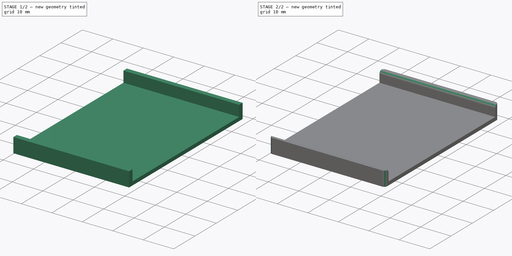
[diagram: build sequence overview — one tinted view per stage of 2, left to right]
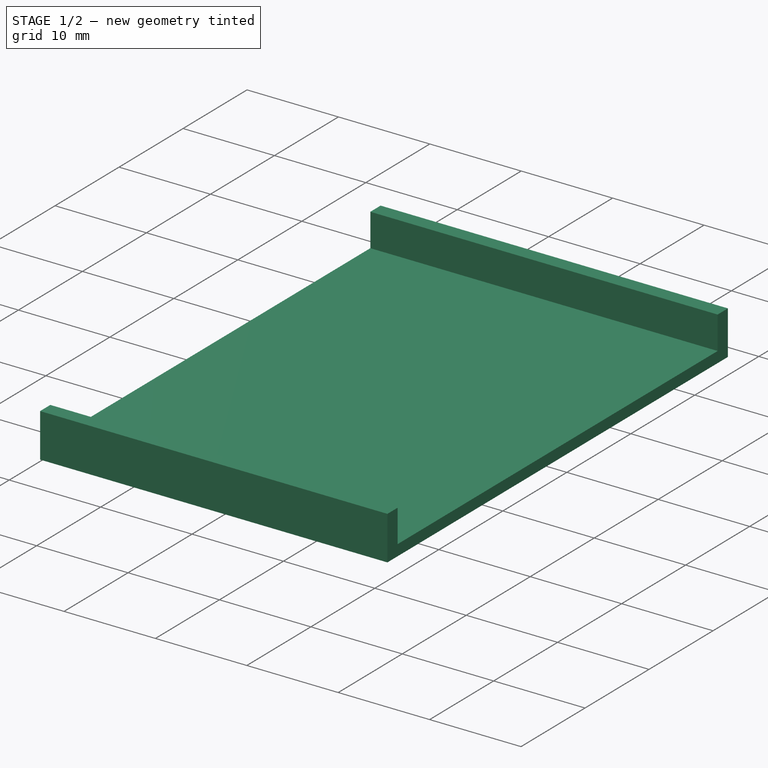
[diagram: stage 1 of 2 — iso view after this stage's code; geometry added in this stage tinted green]
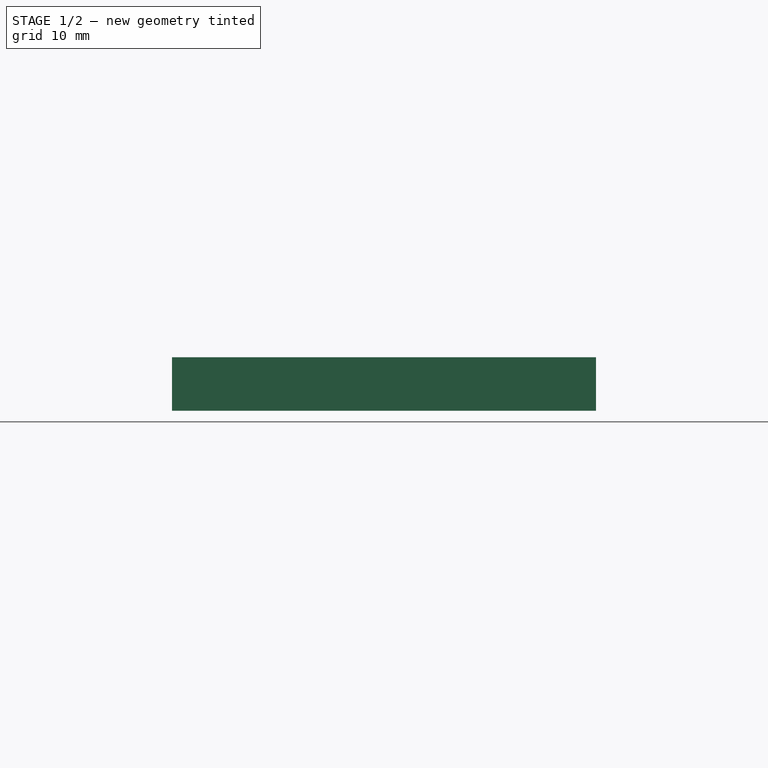
[diagram: stage 1 of 2 — front view after this stage's code; geometry added in this stage tinted green]
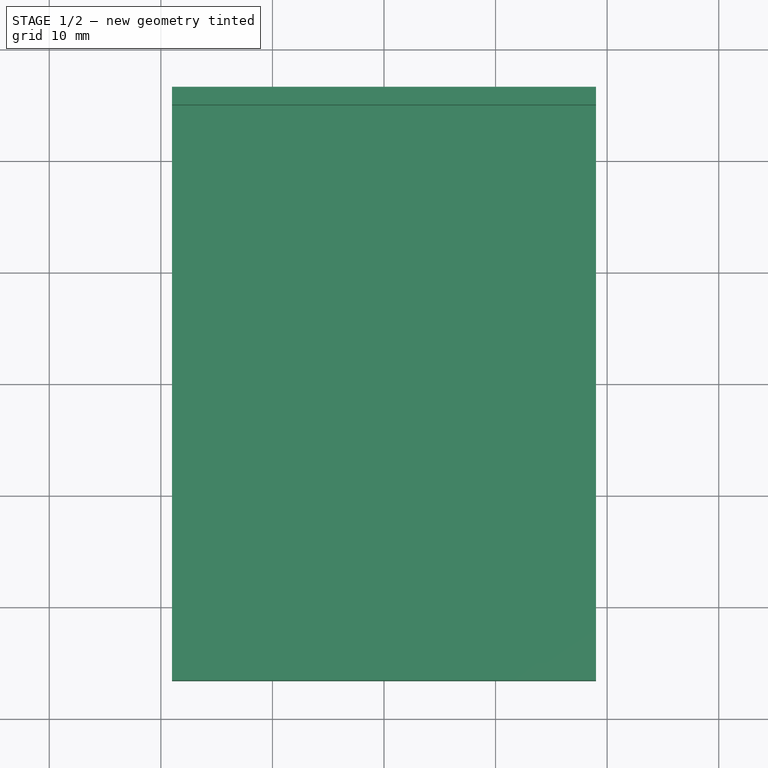
[diagram: stage 1 of 2 — top view after this stage's code; geometry added in this stage tinted green]
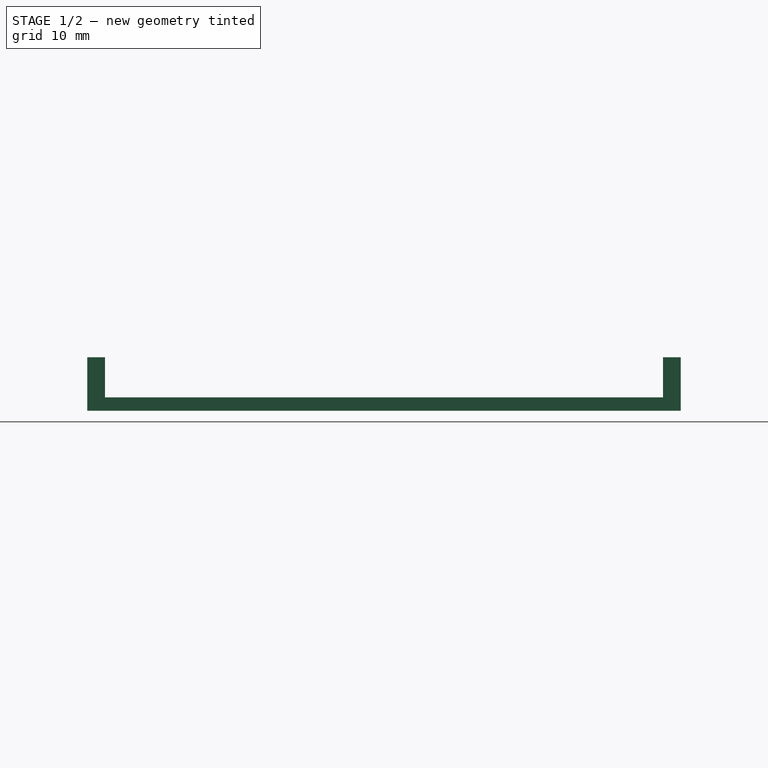
[diagram: stage 1 of 2 — right view after this stage's code; geometry added in this stage tinted green]
FCSTD DOCUMENT  (FreeCAD 0.20R29410 (Git))
Label: TapeCutTool
License: All rights reserved
LicenseURL: http://en.wikipedia.org/wiki/All_rights_reserved
objects: Sketcher::SketchObject×3, PartDesign::Pad×2, PartDesign::Fillet×2, PartDesign::Body×1
note: 12 computed .brp shape members not serialized (recipe doc carries the construction recipe); baked Part::Feature solids carry a one-line shape summary decoded from their .brp

FEATURE [Sketcher::SketchObject] Sketch  label="Template"
  FullyConstrained = true
  MapMode = 5
  Support = -> [XY_Plane]
  sketch-geometry (10):
    g0: LineSegment StartX=-19 StartY=25 StartZ=0 EndX=19 EndY=25 EndZ=0
    g1: LineSegment StartX=19 StartY=25 StartZ=0 EndX=19 EndY=-25 EndZ=0
    g2: LineSegment StartX=19 StartY=-25 StartZ=0 EndX=-19 EndY=-25 EndZ=0
    g3: LineSegment StartX=-19 StartY=-25 StartZ=0 EndX=-19 EndY=25 EndZ=0
    g4: LineSegment StartX=-19 StartY=25 StartZ=0 EndX=-19 EndY=26.6 EndZ=0
    g5: LineSegment StartX=-19 StartY=26.6 StartZ=0 EndX=19 EndY=26.6 EndZ=0
    g6: LineSegment StartX=19 StartY=26.6 StartZ=0 EndX=19 EndY=25 EndZ=0
    g7: LineSegment StartX=-19 StartY=-25 StartZ=0 EndX=-19 EndY=-26.6 EndZ=0
    g8: LineSegment StartX=-19 StartY=-26.6 StartZ=0 EndX=19 EndY=-26.6 EndZ=0
    g9: LineSegment StartX=19 StartY=-26.6 StartZ=0 EndX=19 EndY=-25 EndZ=0
  constraints (27):
    c: Coincident(g0,g1)
    c: Coincident(g1,g2)
    c: Coincident(g2,g3)
    c: Coincident(g3,g0)
    c: Horizontal(g0)
    c: Horizontal(g2)
    c: Vertical(g1)
    c: Vertical(g3)
    c: Coincident(g0,g4)
    c: Vertical(g4)
    c: Coincident(g4,g5)
    c: Horizontal(g5)
    c: Coincident(g5,g6)
    c: Coincident(g6,g0)
    c: Vertical(g6)
    c: Coincident(g2,g7)
    c: Vertical(g7)
    c: Coincident(g7,g8)
    c: Horizontal(g8)
    c: Coincident(g8,g9)
    c: Coincident(g9,g1)
    c: Vertical(g9)
    c: Equal(g7,g4)
    c: DistanceX(g5,g5) = 38
    c: DistanceY(g3,g3) = 50
    c: DistanceY(g4,g4) = 1.6
    c: Symmetric(g2,g0,g-1)
FEATURE [Sketcher::SketchObject] Sketch001
  ExternalGeometry = -> [Sketch]
  FullyConstrained = true
  MapMode = 5
  Support = -> [XY_Plane]
  sketch-geometry (4):
    g0: LineSegment StartX=-19 StartY=25 StartZ=0 EndX=19 EndY=25 EndZ=0
    g1: LineSegment StartX=19 StartY=25 StartZ=0 EndX=19 EndY=-25 EndZ=0
    g2: LineSegment StartX=19 StartY=-25 StartZ=0 EndX=-19 EndY=-25 EndZ=0
    g3: LineSegment StartX=-19 StartY=-25 StartZ=0 EndX=-19 EndY=25 EndZ=0
  constraints (8):
    c: Coincident(g-3,g0)
    c: Coincident(g0,g-3)
    c: Coincident(g0,g1)
    c: Coincident(g1,g-4)
    c: Coincident(g1,g2)
    c: Coincident(g2,g-4)
    c: Coincident(g2,g3)
    c: Coincident(g3,g0)
FEATURE [PartDesign::Pad] Pad
  Direction = (0,0,1)
  Length = 1.2
  Length2 = 10
  Profile = -> Sketch001
  ReferenceAxis = -> Sketch001 [N_Axis]
  Type = 0
FEATURE [Sketcher::SketchObject] Sketch002
  ExternalGeometry = -> [Sketch]
  FullyConstrained = true
  MapMode = 5
  Support = -> [XY_Plane]
  sketch-geometry (8):
    g0: LineSegment StartX=-19 StartY=26.6 StartZ=0 EndX=19 EndY=26.6 EndZ=0
    g1: LineSegment StartX=19 StartY=26.6 StartZ=0 EndX=19 EndY=25 EndZ=0
    g2: LineSegment StartX=19 StartY=25 StartZ=0 EndX=-19 EndY=25 EndZ=0
    g3: LineSegment StartX=-19 StartY=25 StartZ=0 EndX=-19 EndY=26.6 EndZ=0
    g4: LineSegment StartX=-19 StartY=-25 StartZ=0 EndX=19 EndY=-25 EndZ=0
    g5: LineSegment StartX=19 StartY=-25 StartZ=0 EndX=19 EndY=-26.6 EndZ=0
    g6: LineSegment StartX=19 StartY=-26.6 StartZ=0 EndX=-19 EndY=-26.6 EndZ=0
    g7: LineSegment StartX=-19 StartY=-26.6 StartZ=0 EndX=-19 EndY=-25 EndZ=0
  constraints (20):
    c: Coincident(g0,g1)
    c: Coincident(g1,g2)
    c: Coincident(g2,g3)
    c: Coincident(g3,g0)
    c: Horizontal(g0)
    c: Horizontal(g2)
    c: Vertical(g1)
    c: Vertical(g3)
    c: Coincident(g0,g-3)
    c: Coincident(g1,g-4)
    c: Coincident(g4,g5)
    c: Coincident(g5,g6)
    c: Coincident(g6,g7)
    c: Coincident(g7,g4)
    c: Horizontal(g4)
    c: Horizontal(g6)
    c: Vertical(g5)
    c: Vertical(g7)
    c: Coincident(g4,g-5)
    c: Coincident(g5,g-6)
FEATURE [PartDesign::Pad] Pad001
  BaseFeature = -> Pad
  Direction = (0,0,1)
  Length = 4.8
  Length2 = 10
  Profile = -> Sketch002
  ReferenceAxis = -> Sketch002 [N_Axis]
  Refine = true
  Type = 0
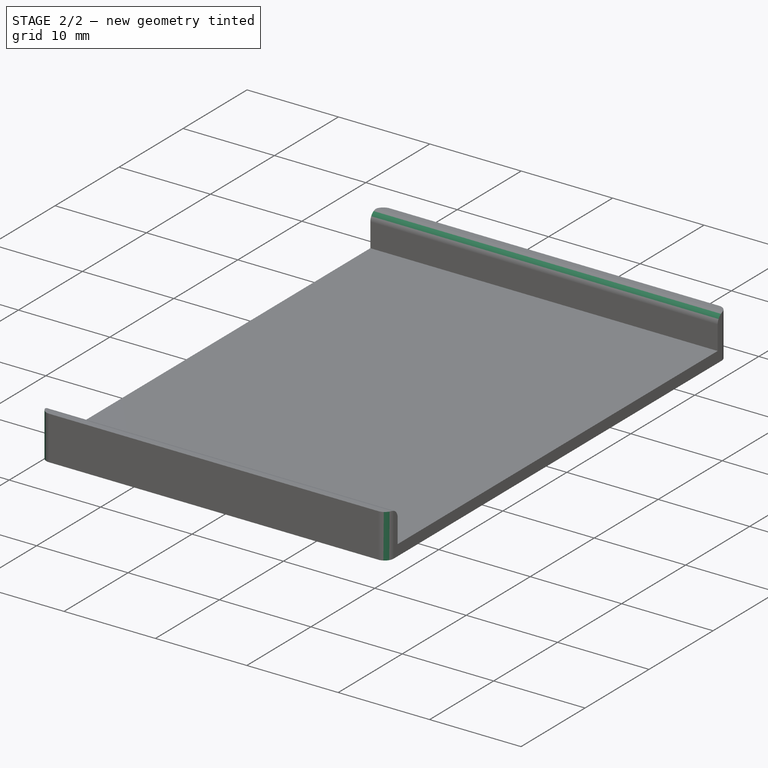
[diagram: stage 2 of 2 — iso view after this stage's code; geometry added in this stage tinted green]
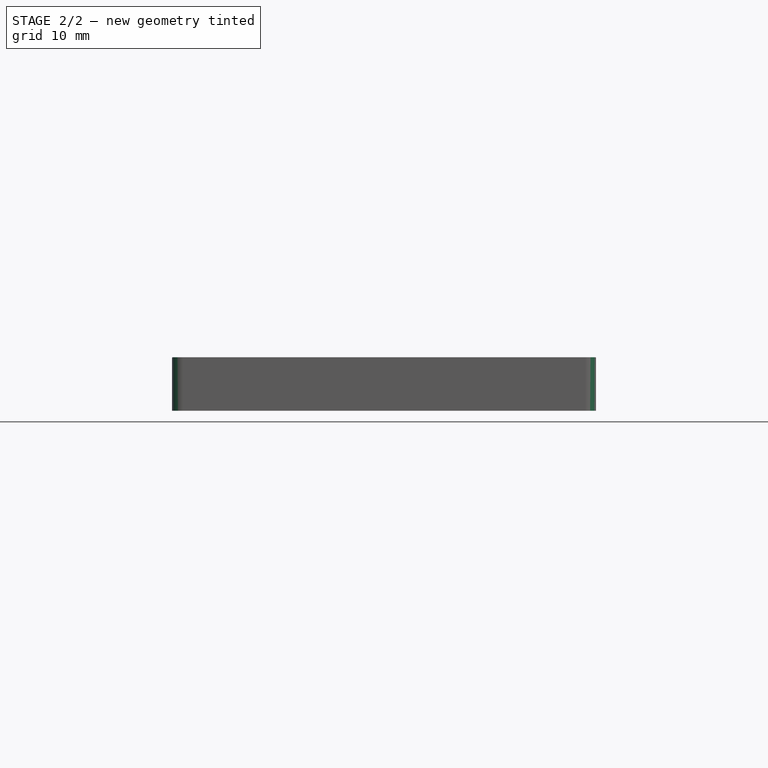
[diagram: stage 2 of 2 — front view after this stage's code; geometry added in this stage tinted green]
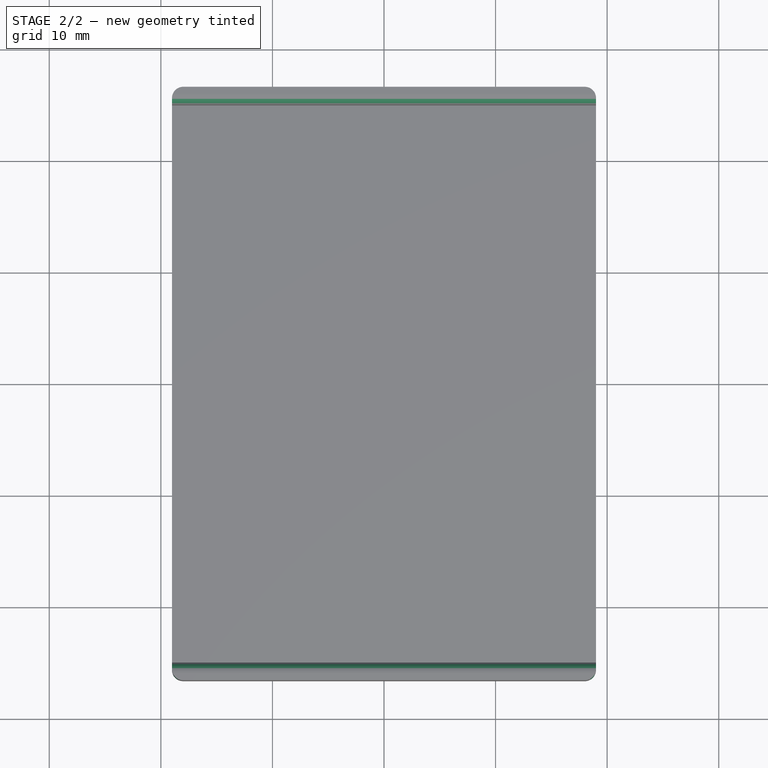
[diagram: stage 2 of 2 — top view after this stage's code; geometry added in this stage tinted green]
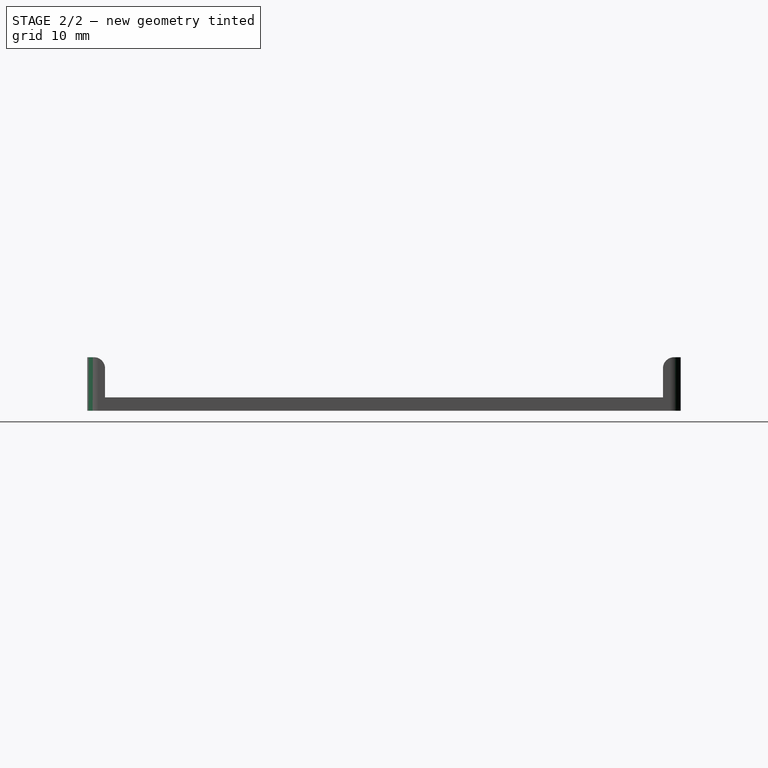
[diagram: stage 2 of 2 — right view after this stage's code; geometry added in this stage tinted green]
FEATURE [PartDesign::Fillet] Fillet
  Base = -> Pad001 [Edge21,Edge1,Edge20,Edge2]
  BaseFeature = -> Pad001
  Radius = 1
  SupportTransform = false
  UseAllEdges = false
FEATURE [PartDesign::Fillet] Fillet001
  Base = -> Fillet [Edge18,Edge36]
  BaseFeature = -> Fillet
  Radius = 1
  SupportTransform = false
  UseAllEdges = false
FEATURE [PartDesign::Body] Body
  Group = -> [Sketch,Sketch001,Pad,Sketch002,Pad001,Fillet,Fillet001]
  Origin = -> Origin
  Tip = -> Fillet001
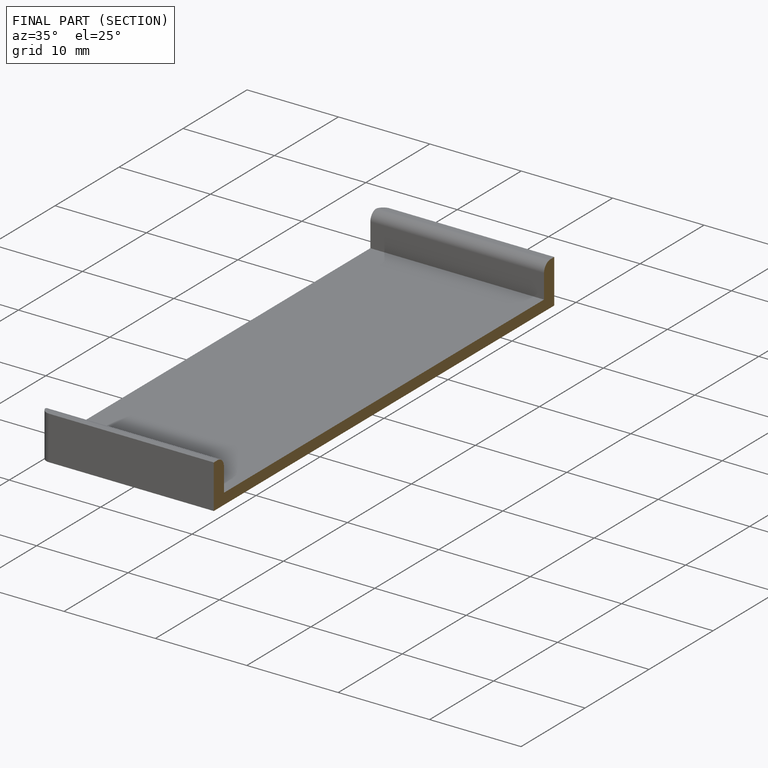
[diagram: finished part — half-section view (interior)]
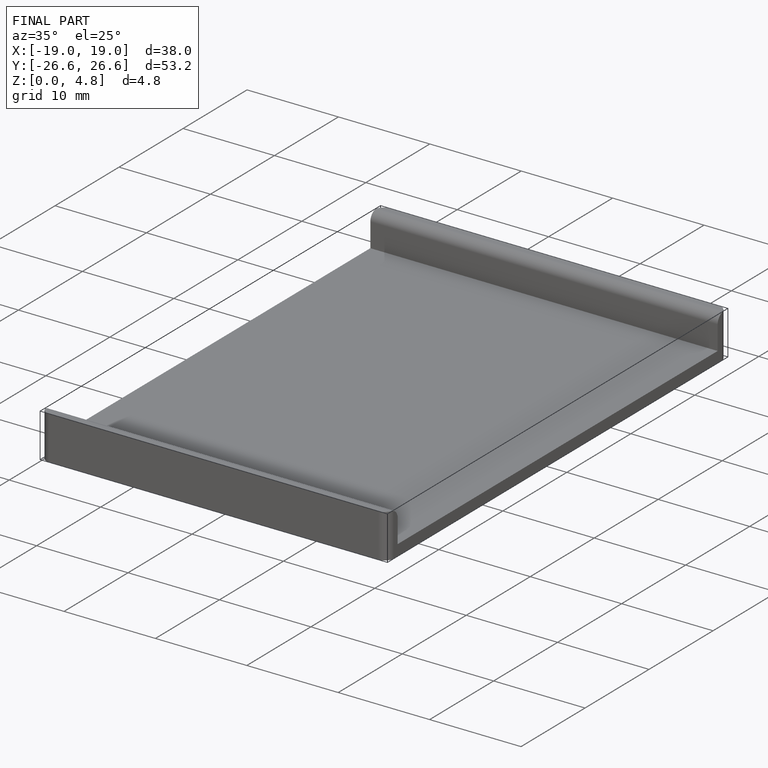
[diagram: finished part — iso view with bounding-box wireframe]
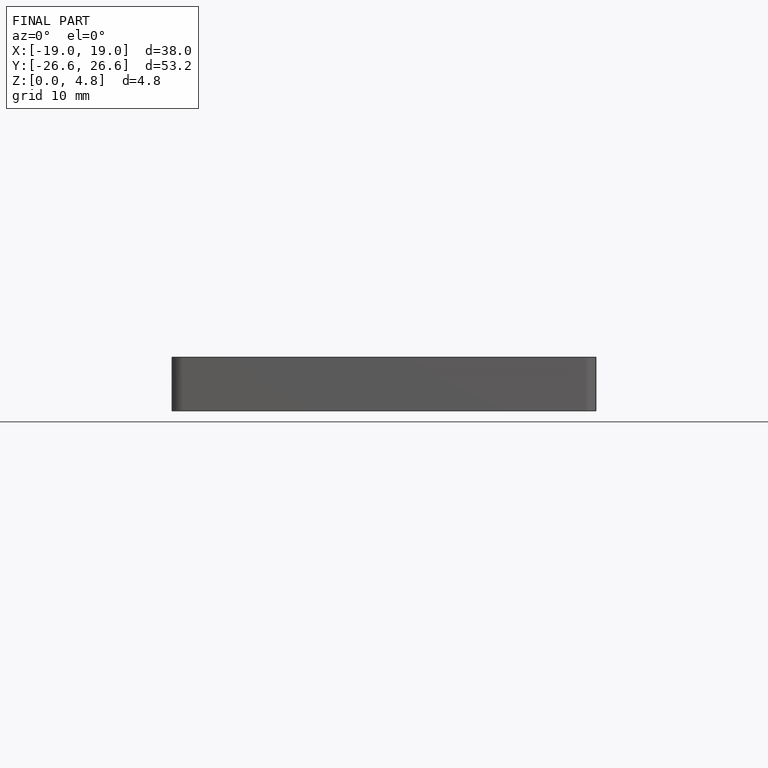
[diagram: finished part — front view with bounding-box wireframe]
